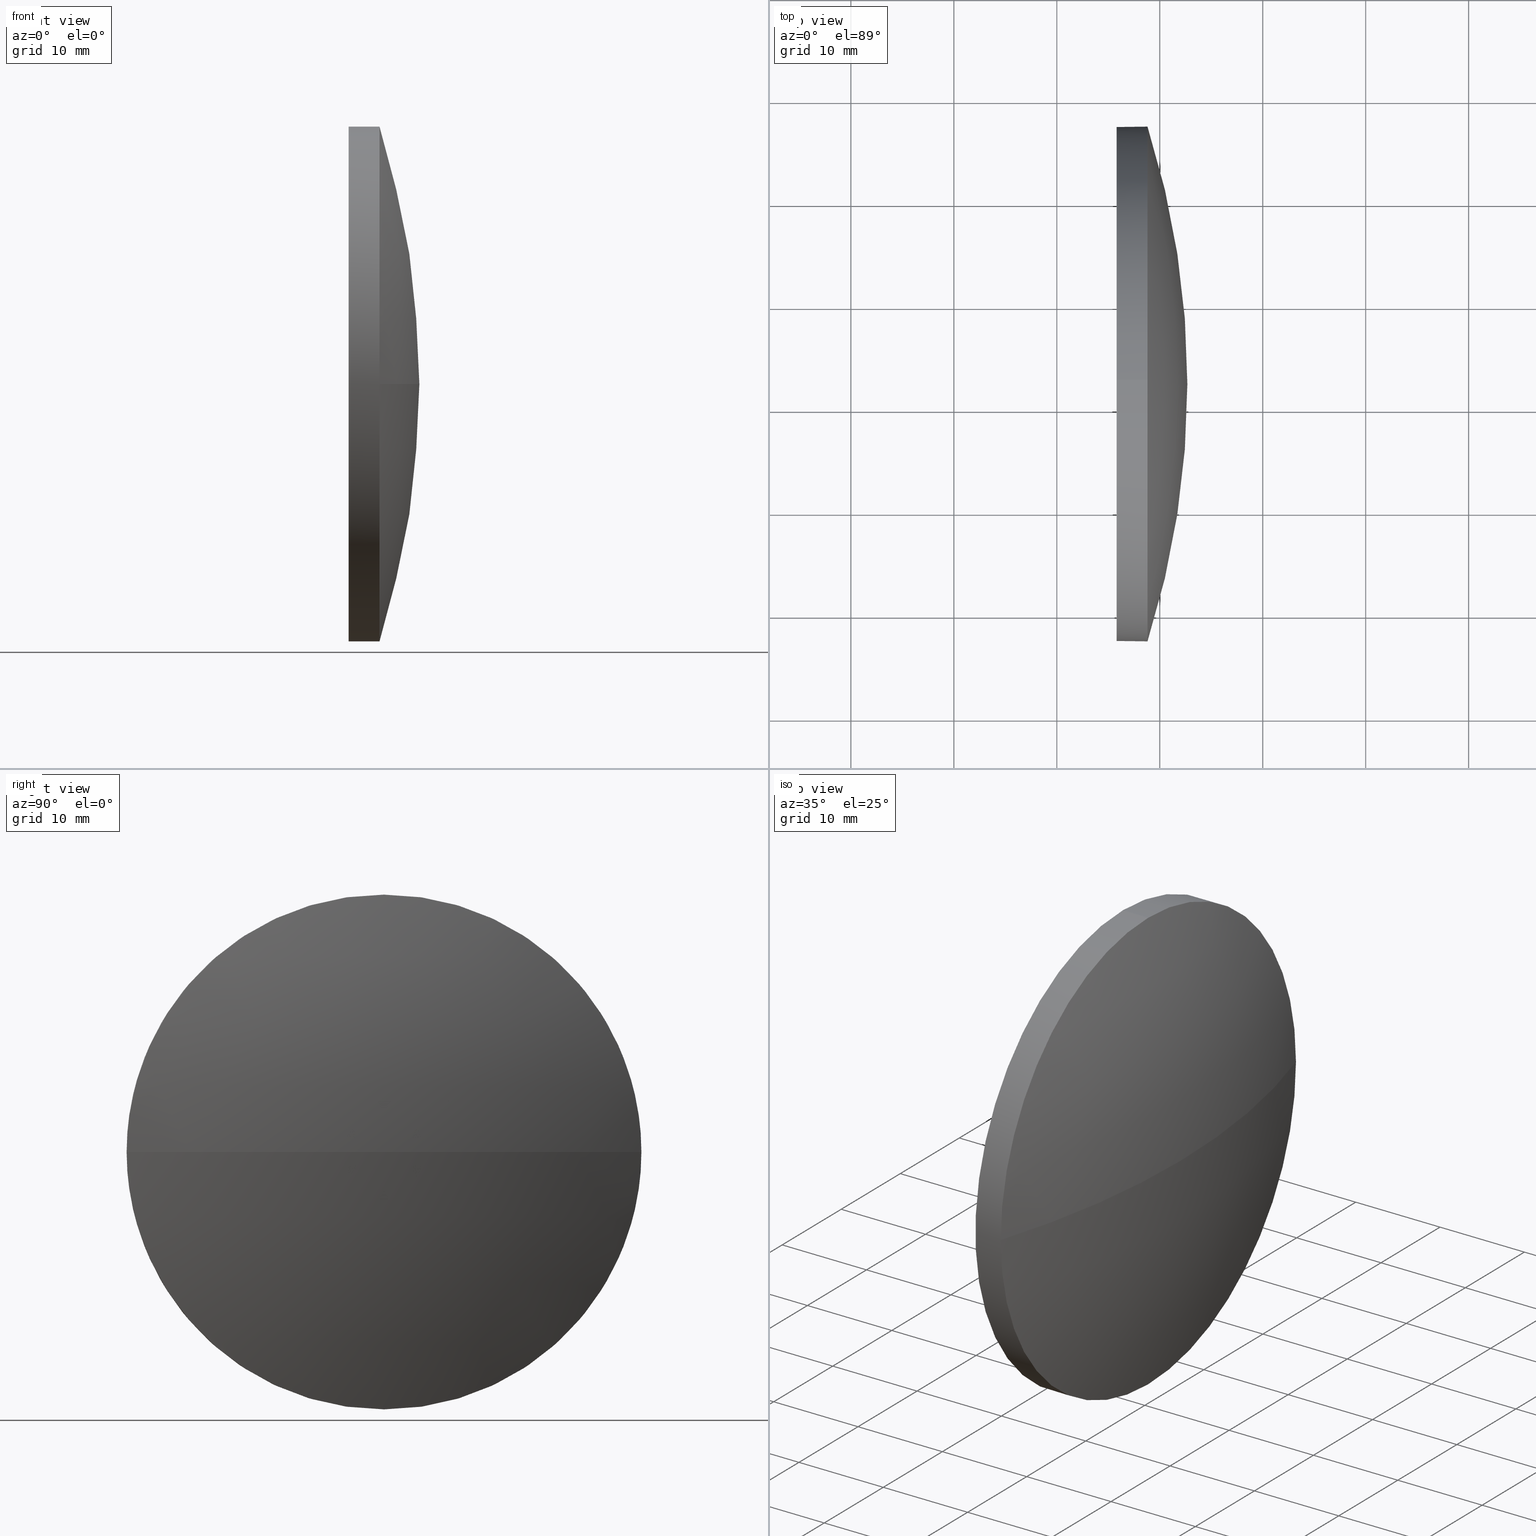
[diagram: canonical four-view strip — front | top / right | iso, engineering-drawing reading convention]
A machine part, canonical four-view strip (front | top / right | iso — engineering-drawing reading convention). The complete STEP part file that produces these views, byte-faithful:
ISO-10303-21;
HEADER;
FILE_DESCRIPTION (( 'STEP AP214' ),
    '1' );
FILE_NAME ('100069.STEP',
    '2019-04-30T09:15:05',
    ( '' ),
    ( '' ),
    'SwSTEP 2.0',
    'SolidWorks 2016',
    '' );
FILE_SCHEMA (( 'AUTOMOTIVE_DESIGN' ));
ENDSEC;

DATA;
#1 = ORIENTED_EDGE ( 'NONE', *, *, #69, .F. ) ;
#2 = DIRECTION ( 'NONE',  ( 1.000000000000000000, 0.0000000000000000000, 0.0000000000000000000 ) ) ;
#3 = PRESENTATION_STYLE_ASSIGNMENT (( #8 ) ) ;
#4 =( LENGTH_UNIT ( ) NAMED_UNIT ( * ) SI_UNIT ( .MILLI., .METRE. ) );
#5 = DIRECTION ( 'NONE',  ( 0.0000000000000000000, 0.0000000000000000000, -1.000000000000000000 ) ) ;
#6 = DIRECTION ( 'NONE',  ( 0.0000000000000000000, 0.0000000000000000000, 1.000000000000000000 ) ) ;
#7 = EDGE_CURVE ( 'NONE', #180, #67, #167, .T. ) ;
#8 = SURFACE_STYLE_USAGE ( .BOTH. , #76 ) ;
#9 =( LENGTH_UNIT ( ) NAMED_UNIT ( * ) SI_UNIT ( .MILLI., .METRE. ) );
#10 = CARTESIAN_POINT ( 'NONE',  ( 418.8113751889766300, 77.30118673096537000, -3.061616997868381900E-015 ) ) ;
#11 = SPHERICAL_SURFACE ( 'NONE', #107, 82.68435400516783300 ) ;
#12 = STYLED_ITEM ( 'NONE', ( #123 ), #13 ) ;
#13 = ADVANCED_BREP_SHAPE_REPRESENTATION ( '100069', ( #130, #97 ), #183 ) ;
#14 = EDGE_LOOP ( 'NONE', ( #1, #55, #98, #40, #136 ) ) ;
#15 = ADVANCED_FACE ( 'NONE', ( #23 ), #172, .T. ) ;
#16 = AXIS2_PLACEMENT_3D ( 'NONE', #85, #71, #162 ) ;
#17 = ORIENTED_EDGE ( 'NONE', *, *, #58, .F. ) ;
#18 = DIRECTION ( 'NONE',  ( 1.000000000000000000, 0.0000000000000000000, 0.0000000000000000000 ) ) ;
#19 = DIRECTION ( 'NONE',  ( 0.0000000000000000000, 0.0000000000000000000, 1.000000000000000000 ) ) ;
#20 = DIRECTION ( 'NONE',  ( 0.0000000000000000000, 0.0000000000000000000, 1.000000000000000000 ) ) ;
#21 = DIRECTION ( 'NONE',  ( -1.000000000000000000, -0.0000000000000000000, -0.0000000000000000000 ) ) ;
#22 = DIRECTION ( 'NONE',  ( -1.000000000000000000, -0.0000000000000000000, -0.0000000000000000000 ) ) ;
#23 = FACE_OUTER_BOUND ( 'NONE', #81, .T. ) ;
#24 = ORIENTED_EDGE ( 'NONE', *, *, #95, .F. ) ;
#25 = UNCERTAINTY_MEASURE_WITH_UNIT (LENGTH_MEASURE( 1.000000000000000100E-005 ), #9, 'distance_accuracy_value', 'NONE');
#26 = SHAPE_DEFINITION_REPRESENTATION ( #60, #13 ) ;
#27 = MECHANICAL_DESIGN_GEOMETRIC_PRESENTATION_REPRESENTATION (  '', ( #165 ), #43 ) ;
#28 = ORIENTED_EDGE ( 'NONE', *, *, #121, .T. ) ;
#29 = ADVANCED_FACE ( 'NONE', ( #125 ), #146, .F. ) ;
#30 = DIRECTION ( 'NONE',  ( -1.000000000000000000, -0.0000000000000000000, -0.0000000000000000000 ) ) ;
#31 = CARTESIAN_POINT ( 'NONE',  ( 418.8113751889766300, 102.3011867309653600, 0.0000000000000000000 ) ) ;
#32 = APPLICATION_CONTEXT ( 'automotive_design' ) ;
#33 = DIRECTION ( 'NONE',  ( 0.0000000000000000000, 0.0000000000000000000, 1.000000000000000000 ) ) ;
#34 = AXIS2_PLACEMENT_3D ( 'NONE', #36, #117, #64 ) ;
#35 = CARTESIAN_POINT ( 'NONE',  ( 422.6813751889766300, 102.3011867309653400, 0.0000000000000000000 ) ) ;
#36 = CARTESIAN_POINT ( 'NONE',  ( 415.8113751889766300, 102.3011867309653600, 0.0000000000000000000 ) ) ;
#37 = VERTEX_POINT ( 'NONE', #84 ) ;
#38 = PRODUCT_DEFINITION_CONTEXT ( 'detailed design', #73, 'design' ) ;
#39 = COLOUR_RGB ( '',1.000000000000000000, 1.000000000000000000, 1.000000000000000000 ) ;
#40 = ORIENTED_EDGE ( 'NONE', *, *, #104, .T. ) ;
#41 = CYLINDRICAL_SURFACE ( 'NONE', #53, 24.99999999999999300 ) ;
#42 = VECTOR ( 'NONE', #56, 1000.000000000000000 ) ;
#43 =( GEOMETRIC_REPRESENTATION_CONTEXT ( 3 ) GLOBAL_UNCERTAINTY_ASSIGNED_CONTEXT ( ( #185 ) ) GLOBAL_UNIT_ASSIGNED_CONTEXT ( ( #4, #52, #115 ) ) REPRESENTATION_CONTEXT ( 'NONE', 'WORKASPACE' ) );
#44 = FACE_OUTER_BOUND ( 'NONE', #96, .T. ) ;
#45 = CARTESIAN_POINT ( 'NONE',  ( 415.8113751889766300, 102.3011867309653600, 24.99999999999999300 ) ) ;
#46 = DIRECTION ( 'NONE',  ( -1.000000000000000000, -0.0000000000000000000, -0.0000000000000000000 ) ) ;
#47 = PRODUCT_RELATED_PRODUCT_CATEGORY ( 'part', '', ( #119 ) ) ;
#48 = FILL_AREA_STYLE_COLOUR ( '', #39 ) ;
#49 = CARTESIAN_POINT ( 'NONE',  ( 418.8113751889766300, 102.3011867309653600, -24.99999999999999300 ) ) ;
#50 = DIRECTION ( 'NONE',  ( 0.0000000000000000000, 1.224646799147353200E-016, -1.000000000000000000 ) ) ;
#51 = CIRCLE ( 'NONE', #171, 24.99999999999999300 ) ;
#52 =( NAMED_UNIT ( * ) PLANE_ANGLE_UNIT ( ) SI_UNIT ( $, .RADIAN. ) );
#53 = AXIS2_PLACEMENT_3D ( 'NONE', #63, #22, #6 ) ;
#54 = ORIENTED_EDGE ( 'NONE', *, *, #7, .F. ) ;
#55 = ORIENTED_EDGE ( 'NONE', *, *, #156, .T. ) ;
#56 = DIRECTION ( 'NONE',  ( -1.000000000000000000, -0.0000000000000000000, -0.0000000000000000000 ) ) ;
#57 = ORIENTED_EDGE ( 'NONE', *, *, #69, .T. ) ;
#58 = EDGE_CURVE ( 'NONE', #67, #77, #51, .T. ) ;
#59 = CARTESIAN_POINT ( 'NONE',  ( 415.8113751889766300, 102.3011867309653600, 0.0000000000000000000 ) ) ;
#60 = PRODUCT_DEFINITION_SHAPE ( 'NONE', 'NONE',  #139 ) ;
#61 = DIRECTION ( 'NONE',  ( -0.0000000000000000000, 0.0000000000000000000, 1.000000000000000000 ) ) ;
#62 = APPLICATION_PROTOCOL_DEFINITION ( 'draft international standard', 'automotive_design', 1998, #73 ) ;
#63 = CARTESIAN_POINT ( 'NONE',  ( 406.3891357517893500, 102.3011867309653600, 0.0000000000000000000 ) ) ;
#64 = DIRECTION ( 'NONE',  ( 0.0000000000000000000, 0.0000000000000000000, 1.000000000000000000 ) ) ;
#65 = VERTEX_POINT ( 'NONE', #45 ) ;
#66 = SURFACE_STYLE_FILL_AREA ( #163 ) ;
#67 = VERTEX_POINT ( 'NONE', #144 ) ;
#68 = CIRCLE ( 'NONE', #99, 24.99999999999999300 ) ;
#69 = EDGE_CURVE ( 'NONE', #184, #37, #168, .T. ) ;
#70 = AXIS2_PLACEMENT_3D ( 'NONE', #177, #46, #179 ) ;
#71 = DIRECTION ( 'NONE',  ( -1.000000000000000000, -0.0000000000000000000, -0.0000000000000000000 ) ) ;
#72 = DIRECTION ( 'NONE',  ( -0.0000000000000000000, 0.0000000000000000000, -1.000000000000000000 ) ) ;
#73 = APPLICATION_CONTEXT ( 'automotive_design' ) ;
#74 = EDGE_CURVE ( 'NONE', #140, #77, #154, .T. ) ;
#75 = DIRECTION ( 'NONE',  ( 0.0000000000000000000, 0.0000000000000000000, 1.000000000000000000 ) ) ;
#76 = SURFACE_SIDE_STYLE ('',( #122 ) ) ;
#77 = VERTEX_POINT ( 'NONE', #160 ) ;
#78 = FILL_AREA_STYLE_COLOUR ( '', #109 ) ;
#79 = LINE ( 'NONE', #132, #42 ) ;
#80 = CIRCLE ( 'NONE', #34, 24.99999999999999300 ) ;
#81 = EDGE_LOOP ( 'NONE', ( #126, #57, #143, #101, #83 ) ) ;
#82 = ADVANCED_FACE ( 'NONE', ( #44 ), #11, .T. ) ;
#83 = ORIENTED_EDGE ( 'NONE', *, *, #58, .T. ) ;
#84 = CARTESIAN_POINT ( 'NONE',  ( 415.8113751889766300, 102.3011867309653600, -24.99999999999999300 ) ) ;
#85 = CARTESIAN_POINT ( 'NONE',  ( 418.8113751889766300, 102.3011867309653600, 0.0000000000000000000 ) ) ;
#86 = AXIS2_PLACEMENT_3D ( 'NONE', #181, #21, #90 ) ;
#87 = EDGE_LOOP ( 'NONE', ( #28, #105 ) ) ;
#88 = SURFACE_SIDE_STYLE ('',( #66 ) ) ;
#89 = DIRECTION ( 'NONE',  ( -1.000000000000000000, -0.0000000000000000000, -0.0000000000000000000 ) ) ;
#90 = DIRECTION ( 'NONE',  ( 0.0000000000000000000, 0.0000000000000000000, 1.000000000000000000 ) ) ;
#91 = AXIS2_PLACEMENT_3D ( 'NONE', #137, #50, #152 ) ;
#92 = ORIENTED_EDGE ( 'NONE', *, *, #156, .F. ) ;
#93 =( NAMED_UNIT ( * ) PLANE_ANGLE_UNIT ( ) SI_UNIT ( $, .RADIAN. ) );
#94 = CIRCLE ( 'NONE', #111, 24.99999999999999300 ) ;
#95 = EDGE_CURVE ( 'NONE', #77, #184, #94, .T. ) ;
#96 = EDGE_LOOP ( 'NONE', ( #170, #186, #17, #54 ) ) ;
#97 = AXIS2_PLACEMENT_3D ( 'NONE', #103, #20, #18 ) ;
#98 = ORIENTED_EDGE ( 'NONE', *, *, #7, .T. ) ;
#99 = AXIS2_PLACEMENT_3D ( 'NONE', #178, #182, #33 ) ;
#100 = DIRECTION ( 'NONE',  ( 1.000000000000000000, 0.0000000000000000000, 0.0000000000000000000 ) ) ;
#101 = ORIENTED_EDGE ( 'NONE', *, *, #104, .F. ) ;
#102 = DIRECTION ( 'NONE',  ( 0.0000000000000000000, 1.000000000000000000, 0.0000000000000000000 ) ) ;
#103 = CARTESIAN_POINT ( 'NONE',  ( 0.0000000000000000000, 0.0000000000000000000, 0.0000000000000000000 ) ) ;
#104 = EDGE_CURVE ( 'NONE', #67, #65, #79, .T. ) ;
#105 = ORIENTED_EDGE ( 'NONE', *, *, #169, .T. ) ;
#106 =( LENGTH_UNIT ( ) NAMED_UNIT ( * ) SI_UNIT ( .MILLI., .METRE. ) );
#107 = AXIS2_PLACEMENT_3D ( 'NONE', #175, #72, #102 ) ;
#108 = CLOSED_SHELL ( 'NONE', ( #15, #127, #82, #141, #29 ) ) ;
#109 = COLOUR_RGB ( '',1.000000000000000000, 1.000000000000000000, 1.000000000000000000 ) ;
#110 = FACE_OUTER_BOUND ( 'NONE', #174, .T. ) ;
#111 = AXIS2_PLACEMENT_3D ( 'NONE', #112, #30, #19 ) ;
#112 = CARTESIAN_POINT ( 'NONE',  ( 418.8113751889766300, 102.3011867309653600, 0.0000000000000000000 ) ) ;
#113 = PRODUCT_DEFINITION_FORMATION_WITH_SPECIFIED_SOURCE ( '�κ�', '', #119, .NOT_KNOWN. ) ;
#114 = CIRCLE ( 'NONE', #91, 82.68435400516783300 ) ;
#115 =( NAMED_UNIT ( * ) SI_UNIT ( $, .STERADIAN. ) SOLID_ANGLE_UNIT ( ) );
#116 = DIRECTION ( 'NONE',  ( 0.0000000000000000000, 1.000000000000000000, 0.0000000000000000000 ) ) ;
#117 = DIRECTION ( 'NONE',  ( -1.000000000000000000, -0.0000000000000000000, -0.0000000000000000000 ) ) ;
#118 = CARTESIAN_POINT ( 'NONE',  ( 339.9970211838087800, 102.3011867309653400, 0.0000000000000000000 ) ) ;
#119 = PRODUCT ( '100069', '100069', '', ( #150 ) ) ;
#120 = APPLICATION_PROTOCOL_DEFINITION ( 'draft international standard', 'automotive_design', 1998, #32 ) ;
#121 = EDGE_CURVE ( 'NONE', #65, #37, #155, .T. ) ;
#122 = SURFACE_STYLE_FILL_AREA ( #151 ) ;
#123 = PRESENTATION_STYLE_ASSIGNMENT (( #164 ) ) ;
#124 = EDGE_CURVE ( 'NONE', #140, #180, #114, .T. ) ;
#125 = FACE_OUTER_BOUND ( 'NONE', #87, .T. ) ;
#126 = ORIENTED_EDGE ( 'NONE', *, *, #95, .T. ) ;
#127 = ADVANCED_FACE ( 'NONE', ( #110 ), #161, .T. ) ;
#128 = ORIENTED_EDGE ( 'NONE', *, *, #124, .T. ) ;
#129 =( GEOMETRIC_REPRESENTATION_CONTEXT ( 3 ) GLOBAL_UNCERTAINTY_ASSIGNED_CONTEXT ( ( #25 ) ) GLOBAL_UNIT_ASSIGNED_CONTEXT ( ( #9, #93, #135 ) ) REPRESENTATION_CONTEXT ( 'NONE', 'WORKASPACE' ) );
#130 = MANIFOLD_SOLID_BREP ( '��ת1', #108 ) ;
#131 = CARTESIAN_POINT ( 'NONE',  ( 406.3891357517893500, 102.3011867309653600, -24.99999999999999300 ) ) ;
#132 = CARTESIAN_POINT ( 'NONE',  ( 406.3891357517893500, 102.3011867309653600, 24.99999999999999300 ) ) ;
#133 =( NAMED_UNIT ( * ) PLANE_ANGLE_UNIT ( ) SI_UNIT ( $, .RADIAN. ) );
#134 = AXIS2_PLACEMENT_3D ( 'NONE', #149, #61, #2 ) ;
#135 =( NAMED_UNIT ( * ) SI_UNIT ( $, .STERADIAN. ) SOLID_ANGLE_UNIT ( ) );
#136 = ORIENTED_EDGE ( 'NONE', *, *, #169, .F. ) ;
#137 = CARTESIAN_POINT ( 'NONE',  ( 339.9970211838087800, 102.3011867309653400, 0.0000000000000000000 ) ) ;
#138 = ORIENTED_EDGE ( 'NONE', *, *, #74, .F. ) ;
#139 = PRODUCT_DEFINITION ( 'δ֪', '', #113, #38 ) ;
#140 = VERTEX_POINT ( 'NONE', #35 ) ;
#141 = ADVANCED_FACE ( 'NONE', ( #148 ), #41, .T. ) ;
#142 = AXIS2_PLACEMENT_3D ( 'NONE', #118, #166, #116 ) ;
#143 = ORIENTED_EDGE ( 'NONE', *, *, #121, .F. ) ;
#144 = CARTESIAN_POINT ( 'NONE',  ( 418.8113751889766300, 102.3011867309653600, 24.99999999999999300 ) ) ;
#145 = UNCERTAINTY_MEASURE_WITH_UNIT (LENGTH_MEASURE( 1.000000000000000100E-005 ), #106, 'distance_accuracy_value', 'NONE');
#146 = PLANE ( 'NONE',  #176 ) ;
#147 =( NAMED_UNIT ( * ) SI_UNIT ( $, .STERADIAN. ) SOLID_ANGLE_UNIT ( ) );
#148 = FACE_OUTER_BOUND ( 'NONE', #14, .T. ) ;
#149 = CARTESIAN_POINT ( 'NONE',  ( 339.9970211838087800, 102.3011867309653400, 0.0000000000000000000 ) ) ;
#150 = PRODUCT_CONTEXT ( 'NONE', #32, 'mechanical' ) ;
#151 = FILL_AREA_STYLE ('',( #48 ) ) ;
#152 = DIRECTION ( 'NONE',  ( 0.0000000000000000000, 1.000000000000000000, 1.224646799147353200E-016 ) ) ;
#153 = PRESENTATION_LAYER_ASSIGNMENT (  '', '', ( #12 ) ) ;
#154 = CIRCLE ( 'NONE', #134, 82.68435400516781900 ) ;
#155 = CIRCLE ( 'NONE', #86, 24.99999999999999300 ) ;
#156 = EDGE_CURVE ( 'NONE', #184, #180, #68, .T. ) ;
#157 = VECTOR ( 'NONE', #89, 1000.000000000000000 ) ;
#158 = MECHANICAL_DESIGN_GEOMETRIC_PRESENTATION_REPRESENTATION (  '', ( #12 ), #129 ) ;
#159 = DIRECTION ( 'NONE',  ( -1.000000000000000000, -0.0000000000000000000, -0.0000000000000000000 ) ) ;
#160 = CARTESIAN_POINT ( 'NONE',  ( 418.8113751889766300, 127.3011867309653600, 0.0000000000000000000 ) ) ;
#161 = SPHERICAL_SURFACE ( 'NONE', #142, 82.68435400516783300 ) ;
#162 = DIRECTION ( 'NONE',  ( 0.0000000000000000000, 0.0000000000000000000, 1.000000000000000000 ) ) ;
#163 = FILL_AREA_STYLE ('',( #78 ) ) ;
#164 = SURFACE_STYLE_USAGE ( .BOTH. , #88 ) ;
#165 = STYLED_ITEM ( 'NONE', ( #3 ), #130 ) ;
#166 = DIRECTION ( 'NONE',  ( -0.0000000000000000000, 0.0000000000000000000, -1.000000000000000000 ) ) ;
#167 = CIRCLE ( 'NONE', #16, 24.99999999999999300 ) ;
#168 = LINE ( 'NONE', #131, #157 ) ;
#169 = EDGE_CURVE ( 'NONE', #37, #65, #80, .T. ) ;
#170 = ORIENTED_EDGE ( 'NONE', *, *, #124, .F. ) ;
#171 = AXIS2_PLACEMENT_3D ( 'NONE', #31, #159, #75 ) ;
#172 = CYLINDRICAL_SURFACE ( 'NONE', #70, 24.99999999999999300 ) ;
#173 = PRESENTATION_LAYER_ASSIGNMENT (  '', '', ( #165 ) ) ;
#174 = EDGE_LOOP ( 'NONE', ( #138, #128, #92, #24 ) ) ;
#175 = CARTESIAN_POINT ( 'NONE',  ( 339.9970211838087800, 102.3011867309653400, 0.0000000000000000000 ) ) ;
#176 = AXIS2_PLACEMENT_3D ( 'NONE', #59, #100, #5 ) ;
#177 = CARTESIAN_POINT ( 'NONE',  ( 406.3891357517893500, 102.3011867309653600, 0.0000000000000000000 ) ) ;
#178 = CARTESIAN_POINT ( 'NONE',  ( 418.8113751889766300, 102.3011867309653600, 0.0000000000000000000 ) ) ;
#179 = DIRECTION ( 'NONE',  ( 0.0000000000000000000, 0.0000000000000000000, 1.000000000000000000 ) ) ;
#180 = VERTEX_POINT ( 'NONE', #10 ) ;
#181 = CARTESIAN_POINT ( 'NONE',  ( 415.8113751889766300, 102.3011867309653600, 0.0000000000000000000 ) ) ;
#182 = DIRECTION ( 'NONE',  ( -1.000000000000000000, -0.0000000000000000000, -0.0000000000000000000 ) ) ;
#183 =( GEOMETRIC_REPRESENTATION_CONTEXT ( 3 ) GLOBAL_UNCERTAINTY_ASSIGNED_CONTEXT ( ( #145 ) ) GLOBAL_UNIT_ASSIGNED_CONTEXT ( ( #106, #133, #147 ) ) REPRESENTATION_CONTEXT ( 'NONE', 'WORKASPACE' ) );
#184 = VERTEX_POINT ( 'NONE', #49 ) ;
#185 = UNCERTAINTY_MEASURE_WITH_UNIT (LENGTH_MEASURE( 1.000000000000000100E-005 ), #4, 'distance_accuracy_value', 'NONE');
#186 = ORIENTED_EDGE ( 'NONE', *, *, #74, .T. ) ;
ENDSEC;
END-ISO-10303-21;
